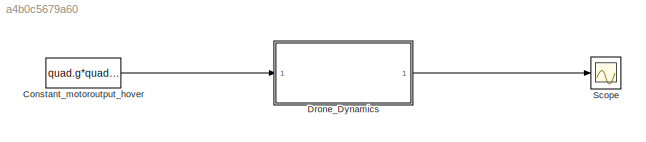
MODEL slx_a4b0c5679a60
KIND model
CONFIG AbsTol = auto
CONFIG FixedStep = auto
CONFIG InitFcn = % load parameters of the default quadrotor\ndisp('Quadrotor parameters loaded by InitFcn')\nparamsFilters %load mdl_quadcopter as well!
CONFIG MaxStep = auto
CONFIG MinStep = auto
CONFIG RelTol = 1e-3
CONFIG SampleTimeConstraint = Unconstrained
CONFIG Solver = ode45
CONFIG SolverMode = Auto
CONFIG SolverName = ode45
CONFIG StartTime = 0.0
CONFIG StopTime = 10.0
BLOCK [Constant] Constant_motoroutput_hover
  Value = quad.g*quad.M*1/(quad.Ct*quad.rho*quad.A*quad.r^2)*1/quadEDT.motorsRSToW2_Gain/4*[1 -1 1 -1]
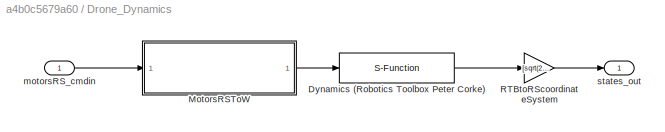
BLOCK [SubSystem] Drone_Dynamics
  Ports = [1, 1]
  RequestExecContextInheritance = off
BLOCK [S-Function] Drone_Dynamics/Dynamics (Robotics Toolbox Peter Corke)
  FunctionName = quadrotor_dynamics
  Parameters = quad
  Ports = [1, 1]
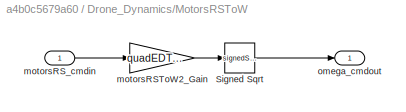
BLOCK [SubSystem] Drone_Dynamics/MotorsRSToW
  Ports = [1, 1]
  RequestExecContextInheritance = off
BLOCK [Sqrt] Drone_Dynamics/MotorsRSToW/Signed Sqrt
  Operator = signedSqrt
BLOCK [Gain] Drone_Dynamics/MotorsRSToW/motorsRSToW2_Gain
  Gain = quadEDT.motorsRSToW2_Gain
  OutDataTypeStr = Inherit: Inherit via internal rule
  ParamDataTypeStr = Inherit: Inherit via internal rule
  SaturateOnIntegerOverflow = off
BLOCK [Inport] Drone_Dynamics/MotorsRSToW/motorsRS_cmdin
  IconDisplay = Port number
BLOCK [Outport] Drone_Dynamics/MotorsRSToW/omega_cmdout
  IconDisplay = Port number
BLOCK [Gain] Drone_Dynamics/RTBtoRScoordinateSystem
  Gain = [sqrt(2)/2 sqrt(2)/2 0 0 0 0 0 0 0 0 0 0;\n -sqrt(2)/2 sqrt(2)/2  0 0 0 0 0 0 0 0 0 0;   \n 0 0 1 0 0 0 0 0 0 0 0 0;\n 0 0 0 1 0 0 0 0 0 0 0 0;\n 0 0 0 0 sqrt(2)/2 -sqrt(2)/2 0 0 0 0 0 0;\n 0 0 0 0 sqrt(2)/2 sqrt(2)/2  0 0 0 0 0 0;    \n 0 0 0 0 0 0 sqrt(2)/2 sqrt(2)/2 0 0 0 0 ;\n 0 0 0 0 0 0 -sqrt(2)/2 sqrt(2)/2  0 0 0 0 ;   \n 0 0 0 0 0 0 0 0 1 0 0 0;\n 0 0 0 0 0 0 0 0 0 sqrt(2)/2 sqrt(2)/2 0;\n 0 0 0 0 0...<+59ch>
  Multiplication = Matrix(K*u)
  OutDataTypeStr = Inherit: Inherit via internal rule
  ParamDataTypeStr = Inherit: Inherit via internal rule
  SaturateOnIntegerOverflow = off
BLOCK [Inport] Drone_Dynamics/motorsRS_cmdin
  IconDisplay = Port number
BLOCK [Outport] Drone_Dynamics/states_out
  IconDisplay = Port number
BLOCK [Scope] Scope
  Floating = off
  NumInputPorts = 1
  Ports = [1]
LINE Constant_motoroutput_hover:1 -> Drone_Dynamics:1
LINE Drone_Dynamics/Dynamics (Robotics Toolbox Peter Corke):1 -> Drone_Dynamics/RTBtoRScoordinateSystem:1
LINE Drone_Dynamics/MotorsRSToW/Signed Sqrt:1 -> Drone_Dynamics/MotorsRSToW/omega_cmdout:1
LINE Drone_Dynamics/MotorsRSToW/motorsRSToW2_Gain:1 -> Drone_Dynamics/MotorsRSToW/Signed Sqrt:1
LINE Drone_Dynamics/MotorsRSToW/motorsRS_cmdin:1 -> Drone_Dynamics/MotorsRSToW/motorsRSToW2_Gain:1
LINE Drone_Dynamics/MotorsRSToW:1 -> Drone_Dynamics/Dynamics (Robotics Toolbox Peter Corke):1
LINE Drone_Dynamics/RTBtoRScoordinateSystem:1 -> Drone_Dynamics/states_out:1
LINE Drone_Dynamics/motorsRS_cmdin:1 -> Drone_Dynamics/MotorsRSToW:1
LINE Drone_Dynamics:1 -> Scope:1
